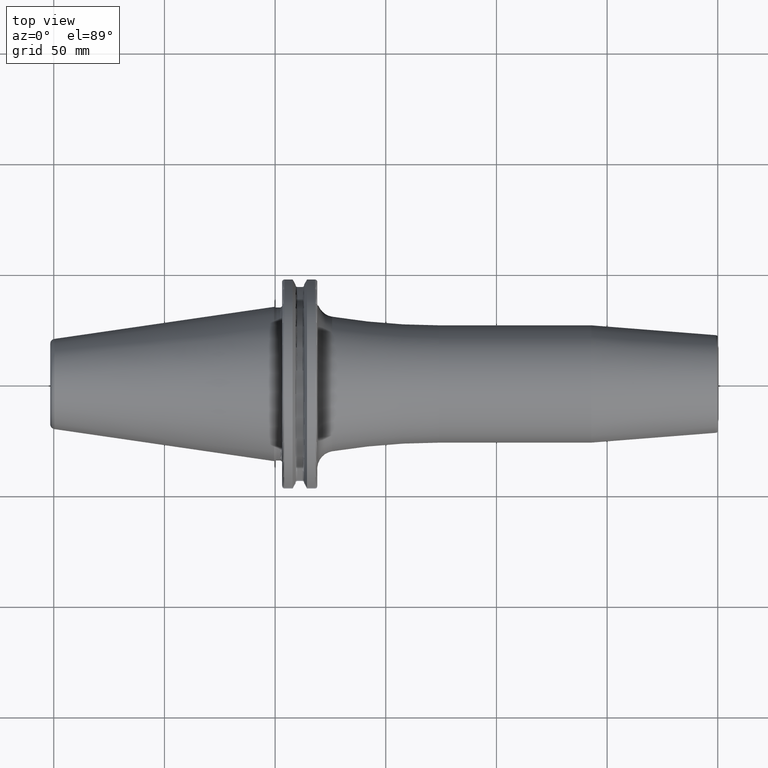
[diagram: clean part render]
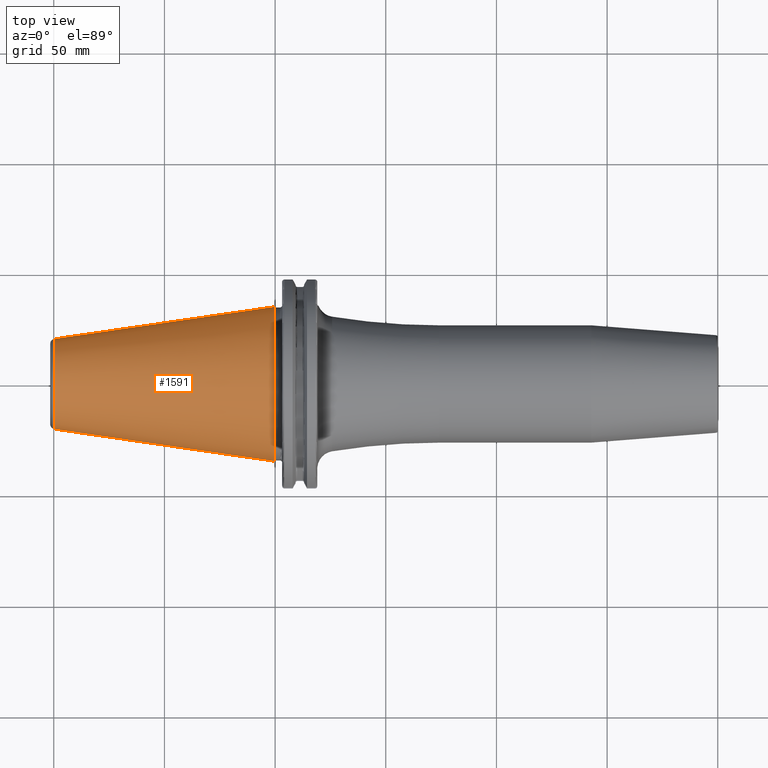
[diagram: same view with one face highlighted and labeled with its STEP entity id]
A machine part, top view. The second image highlights one B-rep face of the part: STEP entity #1591.
In plain terms, the highlighted conical surface has half-angle 8.298 deg.
Its self-contained STEP definition (entity closure, byte-faithful):
#37=CARTESIAN_POINT('',(-9.967471700563E1,0.E0,0.E0));
#38=DIRECTION('',(1.E0,0.E0,0.E0));
#39=DIRECTION('',(0.E0,1.E0,0.E0));
#40=AXIS2_PLACEMENT_3D('',#37,#38,#39);
#42=CARTESIAN_POINT('',(-4.896823332305E-1,0.E0,0.E0));
#43=DIRECTION('',(1.E0,0.E0,0.E0));
#44=DIRECTION('',(0.E0,1.E0,0.E0));
#45=AXIS2_PLACEMENT_3D('',#42,#43,#44);
#47=DIRECTION('',(-9.895312636440E-1,-1.443186691705E-1,0.E0));
#48=VECTOR('',#47,1.002343617797E2);
#49=CARTESIAN_POINT('',(-4.896823332305E-1,3.485358204157E1,0.E0));
#50=LINE('',#49,#48);
#51=DIRECTION('',(-9.895312636440E-1,1.443186691705E-1,0.E0));
#52=VECTOR('',#51,1.002343617797E2);
#53=CARTESIAN_POINT('',(-4.896823332305E-1,-3.485358204157E1,0.E0));
#54=LINE('',#53,#52);
#1270=CARTESIAN_POINT('',(-9.967471700563E1,2.038789234437E1,0.E0));
#1272=VERTEX_POINT('',#1270);
#1274=CARTESIAN_POINT('',(-9.967471700563E1,-2.038789234437E1,0.E0));
#1276=VERTEX_POINT('',#1274);
#1338=CARTESIAN_POINT('',(-4.896823332305E-1,3.485358204157E1,0.E0));
#1339=VERTEX_POINT('',#1338);
#1340=CARTESIAN_POINT('',(-4.896823332305E-1,-3.485358204157E1,0.E0));
#1341=VERTEX_POINT('',#1340);
#1577=CARTESIAN_POINT('',(-5.008219966943E1,0.E0,0.E0));
#1578=DIRECTION('',(1.E0,0.E0,0.E0));
#1579=DIRECTION('',(0.E0,-1.E0,0.E0));
#1580=AXIS2_PLACEMENT_3D('',#1577,#1578,#1579);
#1581=CONICAL_SURFACE('',#1580,2.762073719297E1,8.297826828206E0);
#1583=ORIENTED_EDGE('',*,*,#1582,.F.);
#1585=ORIENTED_EDGE('',*,*,#1584,.T.);
#1587=ORIENTED_EDGE('',*,*,#1586,.T.);
#1588=ORIENTED_EDGE('',*,*,#1570,.F.);
#1589=EDGE_LOOP('',(#1583,#1585,#1587,#1588));
#1590=FACE_OUTER_BOUND('',#1589,.F.);
#1591=ADVANCED_FACE('',(#1590),#1581,.T.);
#41=CIRCLE('',#40,2.038789234437E1);
#46=CIRCLE('',#45,3.485358204157E1);
#1570=EDGE_CURVE('',#1272,#1276,#41,.T.);
#1582=EDGE_CURVE('',#1339,#1272,#50,.T.);
#1584=EDGE_CURVE('',#1339,#1341,#46,.T.);
#1586=EDGE_CURVE('',#1341,#1276,#54,.T.);